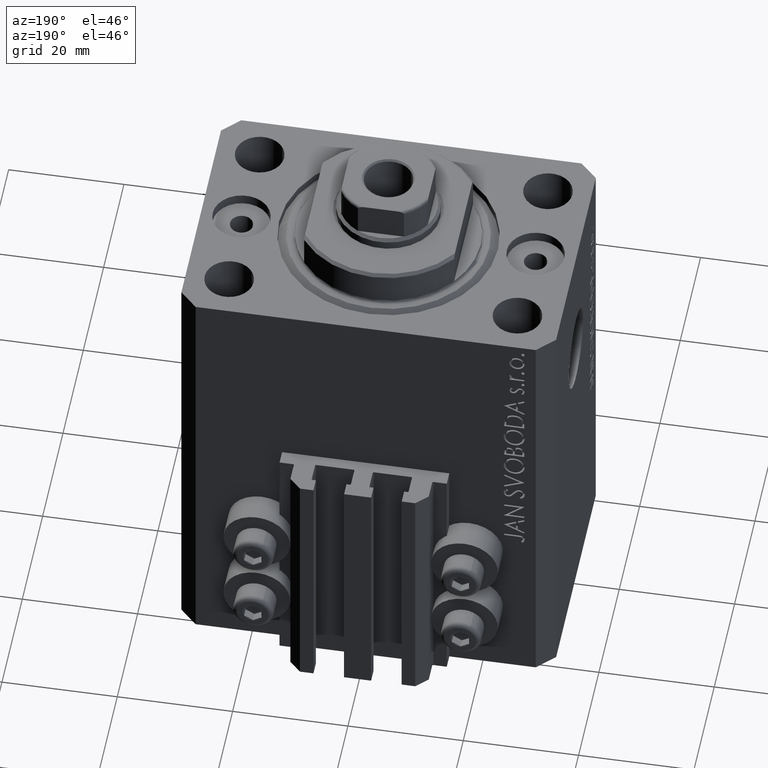
[diagram: clean part render]
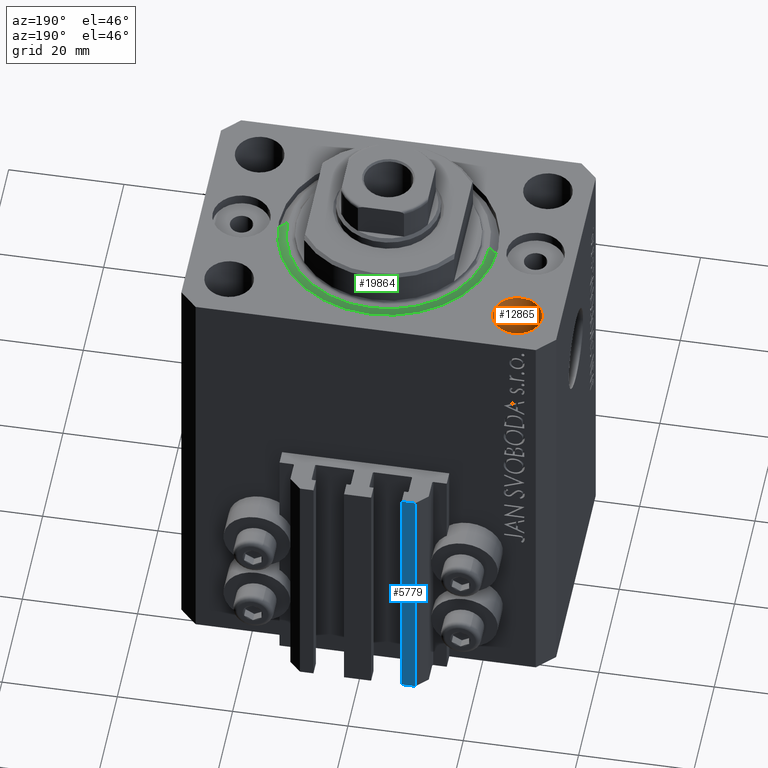
[diagram: same view with three faces highlighted in distinct colors, each labeled with its STEP entity id]
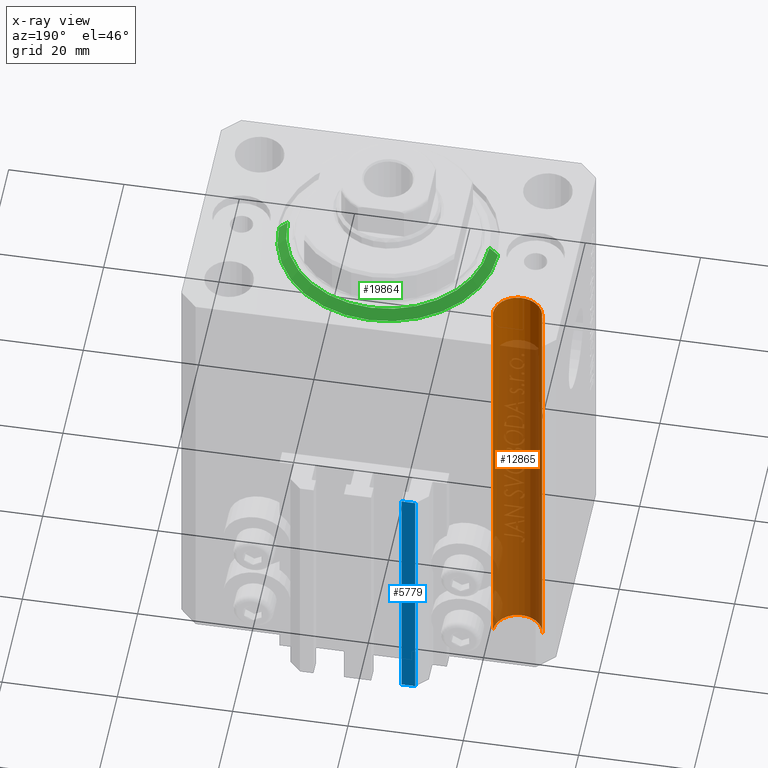
[diagram: x-ray of the same camera — body ghosted, the three highlighted faces saturated]
A machine part, auxiliary view with three faces highlighted in distinct colors.
The next image is the same camera in x-ray (body ghosted, the three faces saturated) — at least one of them is partly hidden behind the body in this view.
Their STEP definitions:

[orange] entity #12865 — the highlighted cylindrical surface (edge-blend (fillet) strip) has radius 4.25 mm, axis along (0, 0, 1).
#785 = EDGE_CURVE ( 'NONE', #23587, #5286, #25101, .T. ) ;
#1463 = AXIS2_PLACEMENT_3D ( 'NONE', #34533, #12603, #5417 ) ;
#5286 = VERTEX_POINT ( 'NONE', #22716 ) ;
#5417 = DIRECTION ( 'NONE',  ( 1.000000000000000000, 0.000000000000000000, 0.000000000000000000 ) ) ;
#5556 = DIRECTION ( 'NONE',  ( -0.000000000000000000, -0.000000000000000000, 1.000000000000000000 ) ) ;
#6213 = CARTESIAN_POINT ( 'NONE',  ( -25.00000000000000000, 14.99999999999999645, 0.000000000000000000 ) ) ;
#6867 = CARTESIAN_POINT ( 'NONE',  ( -20.74999999997862687, 14.99999999999999645, -78.00000000000000000 ) ) ;
#9727 = CYLINDRICAL_SURFACE ( 'NONE', #43932, 4.250000000021375790 ) ;
#12312 = CARTESIAN_POINT ( 'NONE',  ( -29.25000000002137668, 14.99999999999999645, 0.000000000000000000 ) ) ;
#12505 = LINE ( 'NONE', #20336, #34333 ) ;
#12603 = DIRECTION ( 'NONE',  ( -0.000000000000000000, -0.000000000000000000, -1.000000000000000000 ) ) ;
#12865 = ADVANCED_FACE ( 'NONE', ( #45524 ), #9727, .F. ) ;
#13332 = DIRECTION ( 'NONE',  ( -0.000000000000000000, -0.000000000000000000, 1.000000000000000000 ) ) ;
#13735 = EDGE_CURVE ( 'NONE', #23587, #45123, #27888, .T. ) ;
#15788 = ORIENTED_EDGE ( 'NONE', *, *, #23227, .T. ) ;
#16714 = AXIS2_PLACEMENT_3D ( 'NONE', #6213, #16965, #39374 ) ;
#16965 = DIRECTION ( 'NONE',  ( 0.000000000000000000, 0.000000000000000000, 1.000000000000000000 ) ) ;
#20336 = CARTESIAN_POINT ( 'NONE',  ( -29.25000000002137668, 14.99999999999999645, -90.02081528028548973 ) ) ;
#20708 = DIRECTION ( 'NONE',  ( 1.000000000000000000, 0.000000000000000000, 0.000000000000000000 ) ) ;
#22716 = CARTESIAN_POINT ( 'NONE',  ( -29.25000000002137668, 14.99999999999999645, -78.00000000000000000 ) ) ;
#23227 = EDGE_CURVE ( 'NONE', #37108, #45123, #32717, .T. ) ;
#23587 = VERTEX_POINT ( 'NONE', #6867 ) ;
#25101 = CIRCLE ( 'NONE', #1463, 4.250000000021375790 ) ;
#25491 = ORIENTED_EDGE ( 'NONE', *, *, #28706, .T. ) ;
#27888 = LINE ( 'NONE', #30993, #40910 ) ;
#28706 = EDGE_CURVE ( 'NONE', #5286, #37108, #12505, .T. ) ;
#30686 = EDGE_LOOP ( 'NONE', ( #46986, #25491, #15788, #45752 ) ) ;
#30993 = CARTESIAN_POINT ( 'NONE',  ( -20.74999999997862687, 14.99999999999999645, -90.02081528028548973 ) ) ;
#31667 = CARTESIAN_POINT ( 'NONE',  ( -25.00000000000000000, 14.99999999999999645, -90.02081528028548973 ) ) ;
#32717 = CIRCLE ( 'NONE', #16714, 4.250000000021375790 ) ;
#34330 = DIRECTION ( 'NONE',  ( -0.000000000000000000, -0.000000000000000000, 1.000000000000000000 ) ) ;
#34333 = VECTOR ( 'NONE', #5556, 1000.000000000000000 ) ;
#34533 = CARTESIAN_POINT ( 'NONE',  ( -25.00000000000000000, 14.99999999999999645, -78.00000000000000000 ) ) ;
#37108 = VERTEX_POINT ( 'NONE', #12312 ) ;
#39374 = DIRECTION ( 'NONE',  ( 1.000000000000000000, 0.000000000000000000, 0.000000000000000000 ) ) ;
#39676 = CARTESIAN_POINT ( 'NONE',  ( -20.74999999997862687, 14.99999999999999645, 0.000000000000000000 ) ) ;
#40910 = VECTOR ( 'NONE', #13332, 1000.000000000000000 ) ;
#43932 = AXIS2_PLACEMENT_3D ( 'NONE', #31667, #34330, #20708 ) ;
#45123 = VERTEX_POINT ( 'NONE', #39676 ) ;
#45524 = FACE_OUTER_BOUND ( 'NONE', #30686, .T. ) ;
#45752 = ORIENTED_EDGE ( 'NONE', *, *, #13735, .F. ) ;
#46986 = ORIENTED_EDGE ( 'NONE', *, *, #785, .T. ) ;

[blue] entity #5779 — the highlighted planar face has unit normal (0, 1, 0).
#460 = DIRECTION ( 'NONE',  ( 0.000000000000000000, 0.000000000000000000, 1.000000000000000000 ) ) ;
#779 = VECTOR ( 'NONE', #16608, 1000.000000000000000 ) ;
#2052 = LINE ( 'NONE', #45951, #779 ) ;
#5568 = EDGE_CURVE ( 'NONE', #15658, #32501, #40559, .T. ) ;
#5779 = ADVANCED_FACE ( 'NONE', ( #13560 ), #20951, .T. ) ;
#5921 = DIRECTION ( 'NONE',  ( -1.000000000000000000, 1.476360405086645049E-15, 0.000000000000000000 ) ) ;
#8467 = ORIENTED_EDGE ( 'NONE', *, *, #5568, .T. ) ;
#13560 = FACE_OUTER_BOUND ( 'NONE', #45780, .T. ) ;
#14829 = LINE ( 'NONE', #15071, #20152 ) ;
#15071 = CARTESIAN_POINT ( 'NONE',  ( -7.650000000000000355, 30.49999999999948486, -78.00000000000000000 ) ) ;
#15315 = DIRECTION ( 'NONE',  ( 0.000000000000000000, 0.000000000000000000, 1.000000000000000000 ) ) ;
#15658 = VERTEX_POINT ( 'NONE', #39506 ) ;
#16608 = DIRECTION ( 'NONE',  ( -1.000000000000000000, 1.476360405086644852E-15, 0.000000000000000000 ) ) ;
#17270 = VERTEX_POINT ( 'NONE', #17403 ) ;
#17403 = CARTESIAN_POINT ( 'NONE',  ( -7.650000000000000355, 30.49999999999948486, -33.00000000000000000 ) ) ;
#17874 = EDGE_CURVE ( 'NONE', #27515, #17270, #14829, .T. ) ;
#17891 = ORIENTED_EDGE ( 'NONE', *, *, #44598, .F. ) ;
#20152 = VECTOR ( 'NONE', #15315, 1000.000000000000000 ) ;
#20951 = PLANE ( 'NONE',  #28911 ) ;
#24120 = EDGE_CURVE ( 'NONE', #27515, #15658, #2052, .T. ) ;
#26079 = CARTESIAN_POINT ( 'NONE',  ( -7.650000000000000355, 30.49999999999948486, -33.00000000000000000 ) ) ;
#27515 = VERTEX_POINT ( 'NONE', #33550 ) ;
#28108 = DIRECTION ( 'NONE',  ( 1.476360405086645049E-15, 1.000000000000000000, -0.000000000000000000 ) ) ;
#28911 = AXIS2_PLACEMENT_3D ( 'NONE', #35036, #28108, #5921 ) ;
#31579 = VECTOR ( 'NONE', #40618, 1000.000000000000000 ) ;
#32501 = VERTEX_POINT ( 'NONE', #46083 ) ;
#33550 = CARTESIAN_POINT ( 'NONE',  ( -7.650000000000000355, 30.49999999999948486, -78.00000000000000000 ) ) ;
#35036 = CARTESIAN_POINT ( 'NONE',  ( -7.650000000000000355, 30.49999999999948486, -78.00000000000000000 ) ) ;
#36549 = VECTOR ( 'NONE', #460, 1000.000000000000000 ) ;
#39506 = CARTESIAN_POINT ( 'NONE',  ( -10.00000000000000000, 30.49999999999948841, -78.00000000000000000 ) ) ;
#40559 = LINE ( 'NONE', #43176, #36549 ) ;
#40618 = DIRECTION ( 'NONE',  ( -1.000000000000000000, 1.476360405086644852E-15, 0.000000000000000000 ) ) ;
#42516 = ORIENTED_EDGE ( 'NONE', *, *, #17874, .F. ) ;
#43176 = CARTESIAN_POINT ( 'NONE',  ( -10.00000000000000000, 30.49999999999948841, -78.00000000000000000 ) ) ;
#44192 = LINE ( 'NONE', #26079, #31579 ) ;
#44598 = EDGE_CURVE ( 'NONE', #17270, #32501, #44192, .T. ) ;
#44769 = ORIENTED_EDGE ( 'NONE', *, *, #24120, .T. ) ;
#45780 = EDGE_LOOP ( 'NONE', ( #17891, #42516, #44769, #8467 ) ) ;
#45951 = CARTESIAN_POINT ( 'NONE',  ( -7.650000000000000355, 30.49999999999948486, -78.00000000000000000 ) ) ;
#46083 = CARTESIAN_POINT ( 'NONE',  ( -10.00000000000000000, 30.49999999999948841, -33.00000000000000000 ) ) ;

[green] entity #19864 — the highlighted conical surface has half-angle 45 deg.
#29 = DIRECTION ( 'NONE',  ( -0.7071067811865483499, 8.659560562354943952E-17, 0.7071067811865467956 ) ) ;
#953 = DIRECTION ( 'NONE',  ( -0.000000000000000000, -0.000000000000000000, 1.000000000000000000 ) ) ;
#1740 = DIRECTION ( 'NONE',  ( -0.000000000000000000, -0.000000000000000000, -1.000000000000000000 ) ) ;
#1971 = CARTESIAN_POINT ( 'NONE',  ( -17.49999999999999289, 2.234980408443919215E-15, 0.000000000000000000 ) ) ;
#2449 = CARTESIAN_POINT ( 'NONE',  ( 0.000000000000000000, 0.000000000000000000, 0.000000000000000000 ) ) ;
#3248 = VERTEX_POINT ( 'NONE', #8670 ) ;
#3399 = CARTESIAN_POINT ( 'NONE',  ( 0.000000000000000000, 0.000000000000000000, 1.500000000000004885 ) ) ;
#5018 = EDGE_LOOP ( 'NONE', ( #39549, #37614, #33392, #19267 ) ) ;
#8056 = VERTEX_POINT ( 'NONE', #16361 ) ;
#8384 = CIRCLE ( 'NONE', #11374, 17.49999999999999289 ) ;
#8670 = CARTESIAN_POINT ( 'NONE',  ( 17.49999999999999289, 0.000000000000000000, 0.000000000000000000 ) ) ;
#9663 = CARTESIAN_POINT ( 'NONE',  ( 19.00000000000000000, 0.000000000000000000, 1.500000000000004885 ) ) ;
#11374 = AXIS2_PLACEMENT_3D ( 'NONE', #2449, #1740, #38252 ) ;
#11708 = FACE_OUTER_BOUND ( 'NONE', #5018, .T. ) ;
#12577 = VERTEX_POINT ( 'NONE', #1971 ) ;
#12646 = DIRECTION ( 'NONE',  ( 1.000000000000000000, 0.000000000000000000, 0.000000000000000000 ) ) ;
#13720 = VECTOR ( 'NONE', #31600, 1000.000000000000000 ) ;
#16361 = CARTESIAN_POINT ( 'NONE',  ( -19.00000000000000000, 0.000000000000000000, 1.500000000000004885 ) ) ;
#17397 = CONICAL_SURFACE ( 'NONE', #28800, 19.00000000000000000, 0.7853981633974492782 ) ;
#18882 = LINE ( 'NONE', #33435, #39632 ) ;
#19267 = ORIENTED_EDGE ( 'NONE', *, *, #24766, .F. ) ;
#19864 = ADVANCED_FACE ( 'NONE', ( #11708 ), #17397, .T. ) ;
#20922 = AXIS2_PLACEMENT_3D ( 'NONE', #3399, #25123, #32752 ) ;
#21191 = VERTEX_POINT ( 'NONE', #45730 ) ;
#24293 = EDGE_CURVE ( 'NONE', #12577, #8056, #18882, .T. ) ;
#24766 = EDGE_CURVE ( 'NONE', #3248, #21191, #34496, .T. ) ;
#25123 = DIRECTION ( 'NONE',  ( -0.000000000000000000, -0.000000000000000000, 1.000000000000000000 ) ) ;
#25131 = EDGE_CURVE ( 'NONE', #12577, #3248, #8384, .T. ) ;
#28800 = AXIS2_PLACEMENT_3D ( 'NONE', #30529, #953, #12646 ) ;
#30529 = CARTESIAN_POINT ( 'NONE',  ( 0.000000000000000000, 0.000000000000000000, 1.500000000000004885 ) ) ;
#31600 = DIRECTION ( 'NONE',  ( 0.7071067811865483499, 0.000000000000000000, 0.7071067811865467956 ) ) ;
#32752 = DIRECTION ( 'NONE',  ( 1.000000000000000000, 0.000000000000000000, 0.000000000000000000 ) ) ;
#33392 = ORIENTED_EDGE ( 'NONE', *, *, #45195, .F. ) ;
#33435 = CARTESIAN_POINT ( 'NONE',  ( -19.00000000000000000, 2.326828918379970970E-15, 1.500000000000004885 ) ) ;
#34496 = LINE ( 'NONE', #9663, #13720 ) ;
#35406 = CIRCLE ( 'NONE', #20922, 19.00000000000000000 ) ;
#37614 = ORIENTED_EDGE ( 'NONE', *, *, #24293, .T. ) ;
#38252 = DIRECTION ( 'NONE',  ( 1.000000000000000000, 0.000000000000000000, 0.000000000000000000 ) ) ;
#39549 = ORIENTED_EDGE ( 'NONE', *, *, #25131, .F. ) ;
#39632 = VECTOR ( 'NONE', #29, 1000.000000000000000 ) ;
#45195 = EDGE_CURVE ( 'NONE', #21191, #8056, #35406, .T. ) ;
#45730 = CARTESIAN_POINT ( 'NONE',  ( 19.00000000000000000, 2.326828918379970970E-15, 1.500000000000004885 ) ) ;